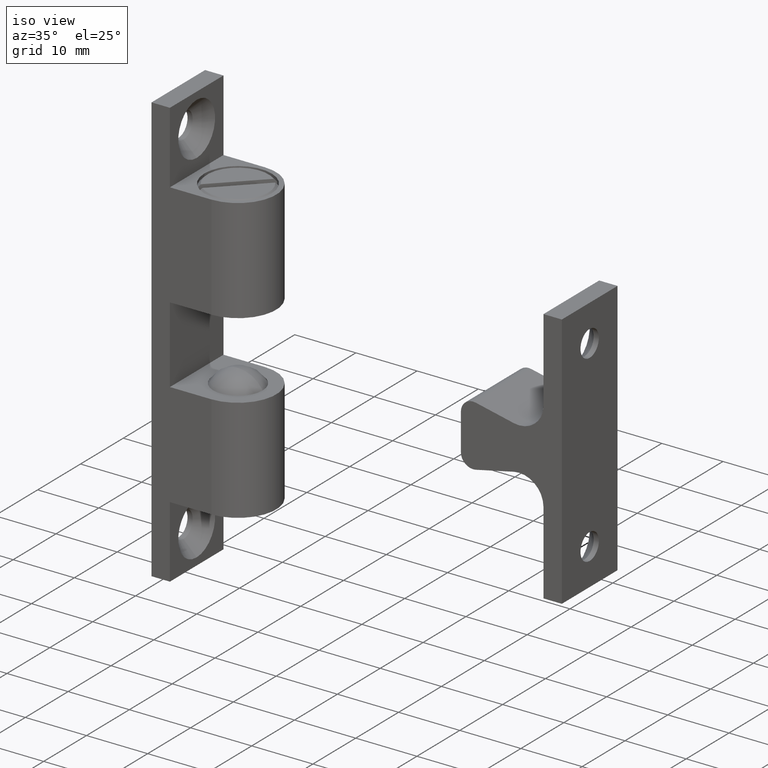
[diagram: clean part render]
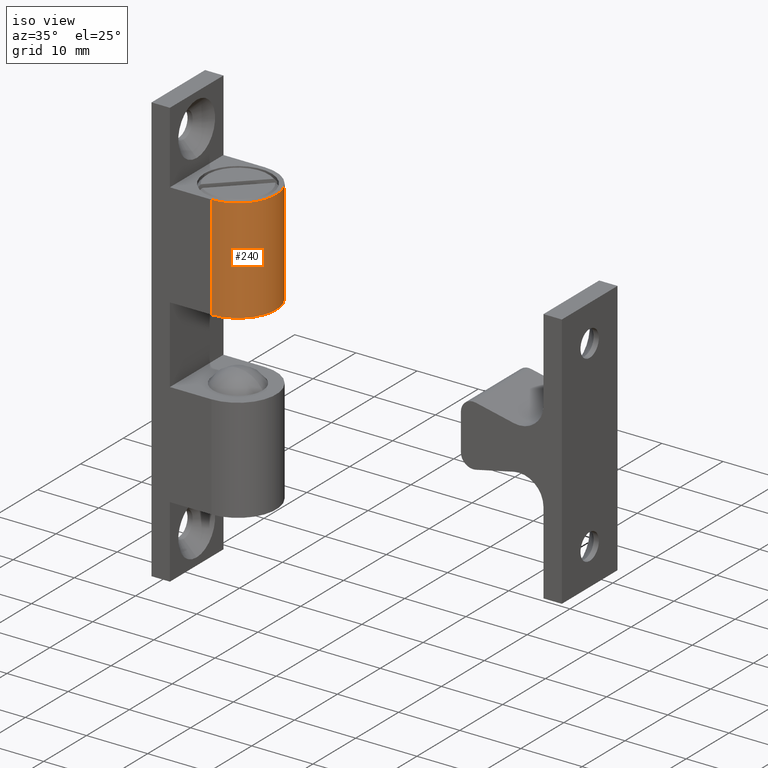
[diagram: same view with one face highlighted and labeled with its STEP entity id]
A machine part, iso view. The second image highlights one B-rep face of the part: STEP entity #240.
In plain terms, the highlighted cylindrical surface (partial cylindrical patch) has radius 6.25 mm, axis along (-0, -0, -1).
Its self-contained STEP definition (entity closure, byte-faithful):
#240=ADVANCED_FACE('',(#641),#640,.T.);
#640=CYLINDRICAL_SURFACE('',#1253,6.25000000000E+00);
#641=FACE_OUTER_BOUND('',#1254,.T.);
#1250=CARTESIAN_POINT('',(9.74970000000E+00,0.00000000000E+00,0.00000000000E+00));
#1251=DIRECTION('',(-0.00000000000E+00,-0.00000000000E+00,-1.00000000000E+00));
#1252=DIRECTION('',(-1.00000000000E+00,-0.00000000000E+00,-0.00000000000E+00));
#1253=AXIS2_PLACEMENT_3D('',#1250,#1251,#1252);
#1254=EDGE_LOOP('',(#1636,#1637,#1638,#1639));
#1636=ORIENTED_EDGE('',*,*,#1898,.F.);
#1637=ORIENTED_EDGE('',*,*,#1899,.F.);
#1638=ORIENTED_EDGE('',*,*,#1900,.F.);
#1639=ORIENTED_EDGE('',*,*,#1901,.F.);
#1898=EDGE_CURVE('',#2558,#2559,#2560,.T.);
#1899=EDGE_CURVE('',#2566,#2558,#2567,.T.);
#1900=EDGE_CURVE('',#2573,#2566,#2574,.T.);
#1901=EDGE_CURVE('',#2559,#2573,#2580,.T.);
#2558=VERTEX_POINT('',#3483);
#2559=VERTEX_POINT('',#3484);
#2560=LINE('',#3485,#3486);
#2566=VERTEX_POINT('',#3488);
#2567=CIRCLE('',#3492,6.25000000000E+00);
#2573=VERTEX_POINT('',#3493);
#2574=LINE('',#3494,#3495);
#2580=CIRCLE('',#3500,6.25000000000E+00);
#3483=CARTESIAN_POINT('',(9.74970000000E+00,-6.25000000000E+00,6.25000000000E+00));
#3484=CARTESIAN_POINT('',(9.74970000000E+00,-6.25000000000E+00,2.32499000000E+01));
#3485=CARTESIAN_POINT('',(9.74970000000E+00,-6.25000000000E+00,6.25000000000E+00));
#3486=VECTOR('',#3487,1.69999000000E+01);
#3487=DIRECTION('',(0.00000000000E+00,0.00000000000E+00,1.00000000000E+00));
#3488=CARTESIAN_POINT('',(9.74970000000E+00,6.25000000000E+00,6.25000000000E+00));
#3489=CARTESIAN_POINT('',(9.74970000000E+00,0.00000000000E+00,6.25000000000E+00));
#3490=DIRECTION('',(0.00000000000E+00,0.00000000000E+00,-1.00000000000E+00));
#3491=DIRECTION('',(-1.00000000000E+00,-0.00000000000E+00,-0.00000000000E+00));
#3492=AXIS2_PLACEMENT_3D('',#3489,#3490,#3491);
#3493=CARTESIAN_POINT('',(9.74970000000E+00,6.25000000000E+00,2.32499000000E+01));
#3494=CARTESIAN_POINT('',(9.74970000000E+00,6.25000000000E+00,2.32499000000E+01));
#3495=VECTOR('',#3496,1.69999000000E+01);
#3496=DIRECTION('',(0.00000000000E+00,0.00000000000E+00,-1.00000000000E+00));
#3497=CARTESIAN_POINT('',(9.74970000000E+00,0.00000000000E+00,2.32499000000E+01));
#3498=DIRECTION('',(0.00000000000E+00,-0.00000000000E+00,1.00000000000E+00));
#3499=DIRECTION('',(-1.83690953073E-16,1.00000000000E+00,0.00000000000E+00));
#3500=AXIS2_PLACEMENT_3D('',#3497,#3498,#3499);